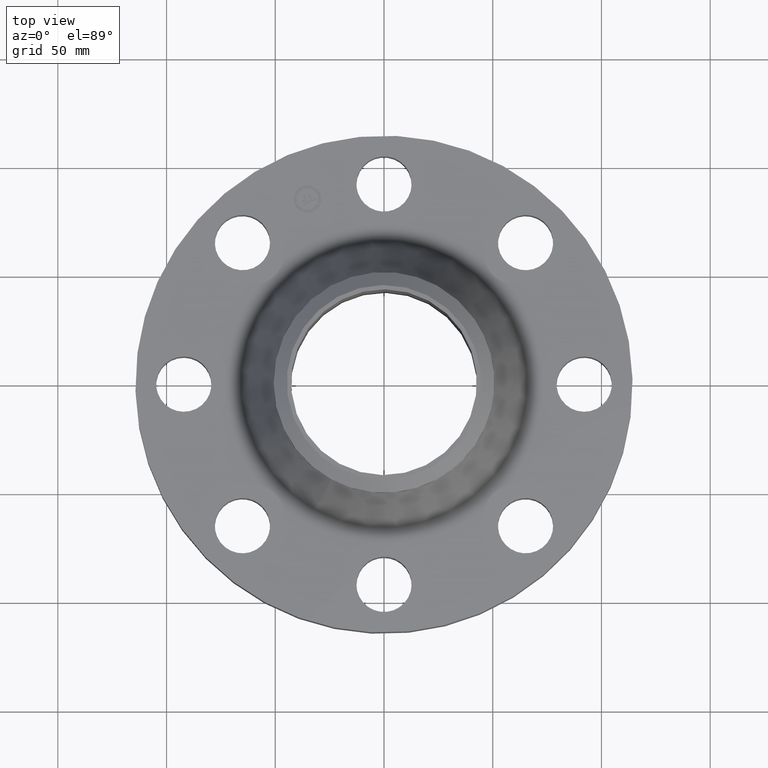
[diagram: clean part render]
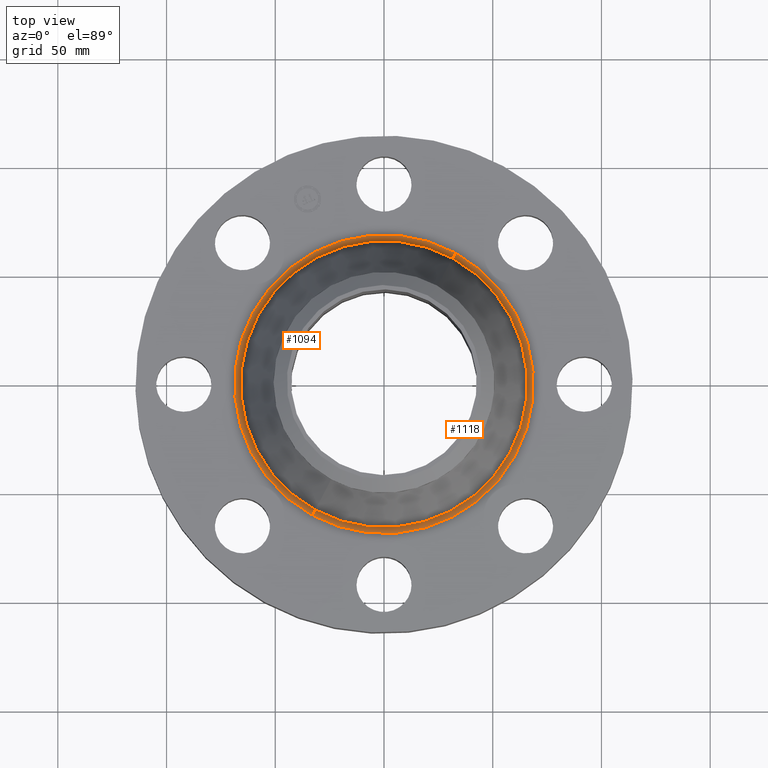
[diagram: same view with one multi-face feature highlighted, each face labeled with its STEP entity id]
A machine part, top view. The highlighted faces form ONE feature: a constant-radius fillet chain: 2 tangent blend faces with common blend radius 3.048 mm. The faces share edges in the B-rep.
Their STEP definitions:
[1] entity #1118 (Torus):
#444=AXIS2_PLACEMENT_3D('Circle Axis2P3D',#442,#443,$) ;
#1071=AXIS2_PLACEMENT_3D('Circle Axis2P3D',#1069,#1070,$) ;
#1085=AXIS2_PLACEMENT_3D('Circle Axis2P3D',#1083,#1084,$) ;
#1105=AXIS2_PLACEMENT_3D('Torus Axis2P3D',#1102,#1103,#1104) ;
#1109=AXIS2_PLACEMENT_3D('Circle Axis2P3D',#1107,#1108,$) ;
#437=CARTESIAN_POINT('Vertex',(-1.29760486197,-2.37524976747,1.38000000001)) ;
#439=CARTESIAN_POINT('Vertex',(1.29760486197,2.37524976747,1.38000000001)) ;
#442=CARTESIAN_POINT('Axis2P3D Location',(5.59482469102E-016,-9.3327270671E-012,1.38000000001)) ;
#1069=CARTESIAN_POINT('Axis2P3D Location',(-1.29760486197,-2.37524976747,1.50000000001)) ;
#1073=CARTESIAN_POINT('Vertex',(-1.24410640535,-2.2773214995,1.45586419286)) ;
#1080=CARTESIAN_POINT('Vertex',(1.24410640535,2.2773214995,1.45586419286)) ;
#1083=CARTESIAN_POINT('Axis2P3D Location',(1.29760486197,2.37524976747,1.50000000001)) ;
#1102=CARTESIAN_POINT('Axis2P3D Location',(0.,0.,1.50000000001)) ;
#1107=CARTESIAN_POINT('Axis2P3D Location',(0.,0.,1.45586419286)) ;
#443=DIRECTION('Axis2P3D Direction',(0.,0.,-0.0393700787402)) ;
#1070=DIRECTION('Axis2P3D Direction',(0.0345504945626,-0.0188750212049,0.)) ;
#1084=DIRECTION('Axis2P3D Direction',(-0.0345504945626,0.0188750212049,0.)) ;
#1103=DIRECTION('Axis2P3D Direction',(0.,0.,-0.0393700787402)) ;
#1104=DIRECTION('Axis2P3D XDirection',(0.0188750212049,0.0345504945626,0.)) ;
#1108=DIRECTION('Axis2P3D Direction',(-0.,0.,-0.0393700787402)) ;
#1113=ORIENTED_EDGE('',*,*,#446,.F.) ;
#1114=ORIENTED_EDGE('',*,*,#1087,.T.) ;
#1115=ORIENTED_EDGE('',*,*,#1111,.T.) ;
#1116=ORIENTED_EDGE('',*,*,#1075,.F.) ;
#1118=ADVANCED_FACE('PartBody',(#1117),#1106,.F.) ;
#445=CIRCLE('generated circle',#444,2.70658268593) ;
#1072=CIRCLE('generated circle',#1071,0.12) ;
#1086=CIRCLE('generated circle',#1085,0.12) ;
#1110=CIRCLE('generated circle',#1109,2.59499401925) ;
#1106=TOROIDAL_SURFACE('homeo Torus',#1105,2.70658268591,0.12) ;
#446=EDGE_CURVE('',#440,#438,#445,.T.) ;
#1075=EDGE_CURVE('',#438,#1074,#1072,.T.) ;
#1087=EDGE_CURVE('',#440,#1081,#1086,.T.) ;
#1111=EDGE_CURVE('',#1081,#1074,#1110,.T.) ;
#1112=EDGE_LOOP('',(#1113,#1114,#1115,#1116)) ;
#1117=FACE_OUTER_BOUND('',#1112,.T.) ;
#438=VERTEX_POINT('',#437) ;
#440=VERTEX_POINT('',#439) ;
#1074=VERTEX_POINT('',#1073) ;
#1081=VERTEX_POINT('',#1080) ;
[2] entity #1094 (Torus):
#435=AXIS2_PLACEMENT_3D('Circle Axis2P3D',#433,#434,$) ;
#1067=AXIS2_PLACEMENT_3D('Torus Axis2P3D',#1064,#1065,#1066) ;
#1071=AXIS2_PLACEMENT_3D('Circle Axis2P3D',#1069,#1070,$) ;
#1078=AXIS2_PLACEMENT_3D('Circle Axis2P3D',#1076,#1077,$) ;
#1085=AXIS2_PLACEMENT_3D('Circle Axis2P3D',#1083,#1084,$) ;
#433=CARTESIAN_POINT('Axis2P3D Location',(-5.59482469102E-016,-9.3327270671E-012,1.38000000001)) ;
#437=CARTESIAN_POINT('Vertex',(-1.29760486197,-2.37524976747,1.38000000001)) ;
#439=CARTESIAN_POINT('Vertex',(1.29760486197,2.37524976747,1.38000000001)) ;
#1064=CARTESIAN_POINT('Axis2P3D Location',(0.,0.,1.50000000001)) ;
#1069=CARTESIAN_POINT('Axis2P3D Location',(-1.29760486197,-2.37524976747,1.50000000001)) ;
#1073=CARTESIAN_POINT('Vertex',(-1.24410640535,-2.2773214995,1.45586419286)) ;
#1076=CARTESIAN_POINT('Axis2P3D Location',(0.,0.,1.45586419286)) ;
#1080=CARTESIAN_POINT('Vertex',(1.24410640535,2.2773214995,1.45586419286)) ;
#1083=CARTESIAN_POINT('Axis2P3D Location',(1.29760486197,2.37524976747,1.50000000001)) ;
#434=DIRECTION('Axis2P3D Direction',(0.,0.,-0.0393700787402)) ;
#1065=DIRECTION('Axis2P3D Direction',(0.,0.,-0.0393700787402)) ;
#1066=DIRECTION('Axis2P3D XDirection',(-0.0188750212049,-0.0345504945626,0.)) ;
#1070=DIRECTION('Axis2P3D Direction',(0.0345504945626,-0.0188750212049,0.)) ;
#1077=DIRECTION('Axis2P3D Direction',(-0.,0.,-0.0393700787402)) ;
#1084=DIRECTION('Axis2P3D Direction',(-0.0345504945626,0.0188750212049,0.)) ;
#1089=ORIENTED_EDGE('',*,*,#441,.F.) ;
#1090=ORIENTED_EDGE('',*,*,#1075,.T.) ;
#1091=ORIENTED_EDGE('',*,*,#1082,.T.) ;
#1092=ORIENTED_EDGE('',*,*,#1087,.F.) ;
#1094=ADVANCED_FACE('PartBody',(#1093),#1068,.F.) ;
#436=CIRCLE('generated circle',#435,2.70658268593) ;
#1072=CIRCLE('generated circle',#1071,0.12) ;
#1079=CIRCLE('generated circle',#1078,2.59499401925) ;
#1086=CIRCLE('generated circle',#1085,0.12) ;
#1068=TOROIDAL_SURFACE('homeo Torus',#1067,2.70658268591,0.12) ;
#441=EDGE_CURVE('',#438,#440,#436,.T.) ;
#1075=EDGE_CURVE('',#438,#1074,#1072,.T.) ;
#1082=EDGE_CURVE('',#1074,#1081,#1079,.T.) ;
#1087=EDGE_CURVE('',#440,#1081,#1086,.T.) ;
#1088=EDGE_LOOP('',(#1089,#1090,#1091,#1092)) ;
#1093=FACE_OUTER_BOUND('',#1088,.T.) ;
#438=VERTEX_POINT('',#437) ;
#440=VERTEX_POINT('',#439) ;
#1074=VERTEX_POINT('',#1073) ;
#1081=VERTEX_POINT('',#1080) ;